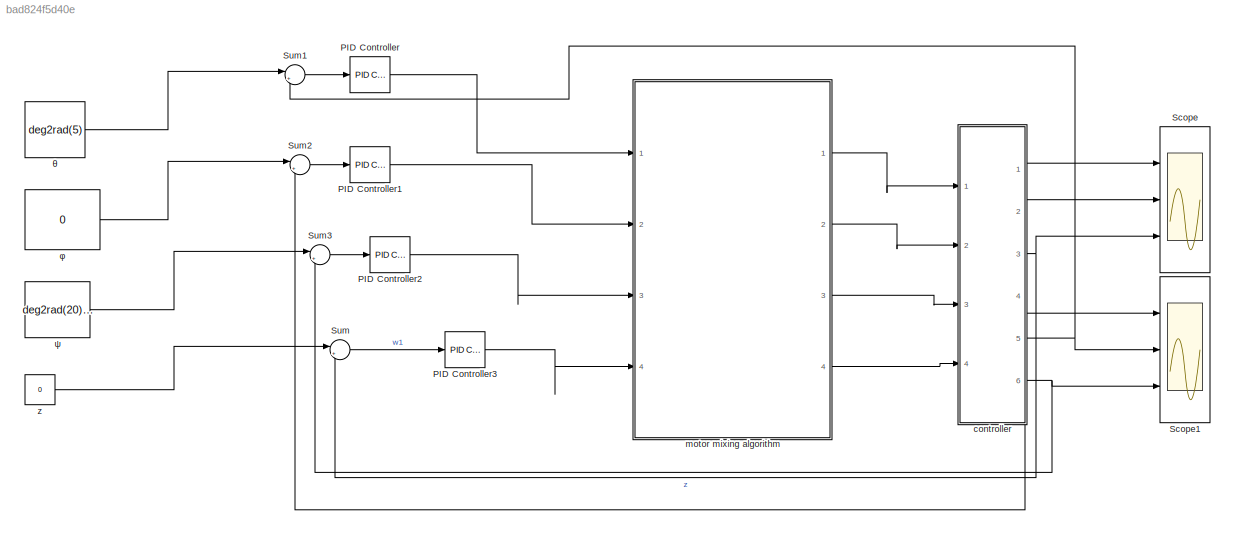
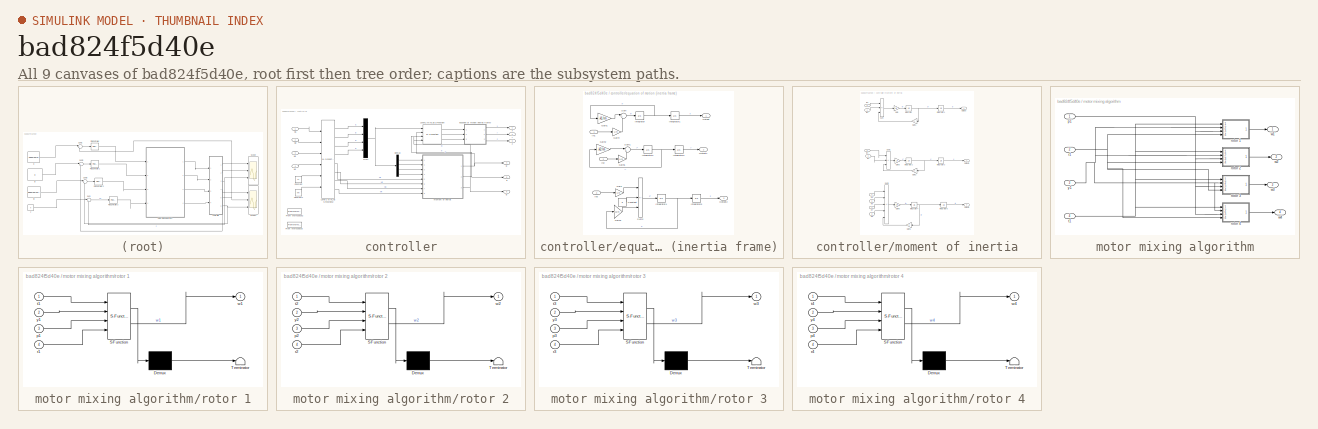
[diagram: thumbnail index - all 9 canvases of the model, root first then tree order]
MODEL slx_bad824f5d40e
KIND model
CONFIG AbsTol = auto
CONFIG EnableMultiTasking = off
CONFIG FixedStep = auto
CONFIG MaxStep = auto
CONFIG MinStep = auto
CONFIG RelTol = 1e-3
CONFIG SampleTimeConstraint = Unconstrained
CONFIG SolverName = VariableStepAuto
CONFIG StartTime = 0.0
CONFIG StopTime = 10.0
BLOCK [Reference] PID Controller  REF=pid_lib/PID Controller
  Ports = [1, 1]
  SourceBlock = pid_lib/PID Controller
  SourceProductBaseCode = SL
  SourceType = PID 1dof
BLOCK [Reference] PID Controller1  REF=pid_lib/PID Controller
  Ports = [1, 1]
  SourceBlock = pid_lib/PID Controller
  SourceProductBaseCode = SL
  SourceType = PID 1dof
BLOCK [Reference] PID Controller2  REF=pid_lib/PID Controller
  Ports = [1, 1]
  SourceBlock = pid_lib/PID Controller
  SourceProductBaseCode = SL
  SourceType = PID 1dof
BLOCK [Reference] PID Controller3  REF=pid_lib/PID Controller
  Ports = [1, 1]
  SourceBlock = pid_lib/PID Controller
  SourceProductBaseCode = SL
  SourceType = PID 1dof
BLOCK [Scope] Scope
  Floating = off
  NumInputPorts = 3
  Ports = [3]
  ScopeSpecificationString = Simulink.scopes.TimeScopeBlockCfg('CurrentConfiguration', extmgr.ConfigurationSet(extmgr.Configuration('Core','General UI',true),extmgr.Configuration('Core','Source UI',true),extmgr.Configuration('Sources','WiredSimulink',true),extmgr.Configuration('Visuals','Time Domain',true,'SerializedDisplays',{struct('MinYLimReal','-343685347486470193371764014186496.00000','MaxYLimReal','309316812737823210063...<+2947ch>
BLOCK [Scope] Scope1
  Floating = off
  NumInputPorts = 3
  Ports = [3]
  ScopeSpecificationString = Simulink.scopes.TimeScopeBlockCfg('CurrentConfiguration', extmgr.ConfigurationSet(extmgr.Configuration('Core','General UI',true),extmgr.Configuration('Core','Source UI',true),extmgr.Configuration('Sources','WiredSimulink',true,'DataLoggingVariableName','ScopeData1'),extmgr.Configuration('Visuals','Time Domain',true,'SerializedDisplays',{struct('MinYLimReal','-131968238339.18199','MaxYLimReal','118...<+3024ch>
BLOCK [Sum] Sum
  Inputs = |+-
  Ports = [2, 1]
BLOCK [Sum] Sum1
  Inputs = |+-
  Ports = [2, 1]
BLOCK [Sum] Sum2
  Inputs = |+-
  Ports = [2, 1]
BLOCK [Sum] Sum3
  Inputs = |+-
  Ports = [2, 1]
BLOCK [SubSystem] controller
  Ports = [4, 6]
  RequestExecContextInheritance = off
BLOCK [Constant] controller/Constant
  Value = kf
BLOCK [Constant] controller/Constant1
  Value = km
BLOCK [Demux] controller/Demux
  Ports = [1, 4]
BLOCK [FromWorkspace] controller/From Workspace2
  Commented = on
  VariableName = kf
BLOCK [FromWorkspace] controller/From Workspace3
  Commented = on
  VariableName = km
BLOCK [M-S-Function] controller/Level-2 MATLAB S-Function
  FunctionName = transformation
  Ports = [4, 3]
BLOCK [M-S-Function] controller/Level-2 MATLAB S-Function2
  FunctionName = w_to_f
  Ports = [6, 8]
BLOCK [Mux] controller/Mux1
  DisplayOption = bar
  Ports = [4, 1]
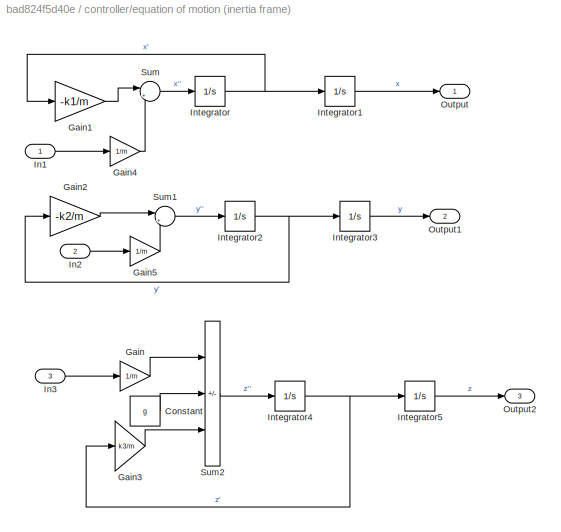
BLOCK [SubSystem] controller/equation of motion (inertia frame)
  Ports = [3, 3]
  RequestExecContextInheritance = off
BLOCK [Constant] controller/equation of motion (inertia frame)/Constant
  Value = g
BLOCK [Gain] controller/equation of motion (inertia frame)/Gain
  Gain = 1/m
BLOCK [Gain] controller/equation of motion (inertia frame)/Gain1
  Gain = -k1/m
BLOCK [Gain] controller/equation of motion (inertia frame)/Gain2
  Gain = -k2/m
BLOCK [Gain] controller/equation of motion (inertia frame)/Gain3
  Gain = k3/m
BLOCK [Gain] controller/equation of motion (inertia frame)/Gain4
  Gain = 1/m
BLOCK [Gain] controller/equation of motion (inertia frame)/Gain5
  Gain = 1/m
BLOCK [Inport] controller/equation of motion (inertia frame)/In1
BLOCK [Inport] controller/equation of motion (inertia frame)/In2
  Port = 2
BLOCK [Inport] controller/equation of motion (inertia frame)/In3
  Port = 3
BLOCK [Integrator] controller/equation of motion (inertia frame)/Integrator
  Ports = [1, 1]
BLOCK [Integrator] controller/equation of motion (inertia frame)/Integrator1
  Ports = [1, 1]
BLOCK [Integrator] controller/equation of motion (inertia frame)/Integrator2
  Ports = [1, 1]
BLOCK [Integrator] controller/equation of motion (inertia frame)/Integrator3
  Ports = [1, 1]
BLOCK [Integrator] controller/equation of motion (inertia frame)/Integrator4
  Ports = [1, 1]
BLOCK [Integrator] controller/equation of motion (inertia frame)/Integrator5
  Ports = [1, 1]
BLOCK [Outport] controller/equation of motion (inertia frame)/Output
BLOCK [Outport] controller/equation of motion (inertia frame)/Output1
  Port = 2
BLOCK [Outport] controller/equation of motion (inertia frame)/Output2
  Port = 3
BLOCK [Sum] controller/equation of motion (inertia frame)/Sum
  Inputs = |++
  Ports = [2, 1]
BLOCK [Sum] controller/equation of motion (inertia frame)/Sum1
  Inputs = |++
  Ports = [2, 1]
BLOCK [Sum] controller/equation of motion (inertia frame)/Sum2
  IconShape = rectangular
  Inputs = |+--
  Ports = [3, 1]
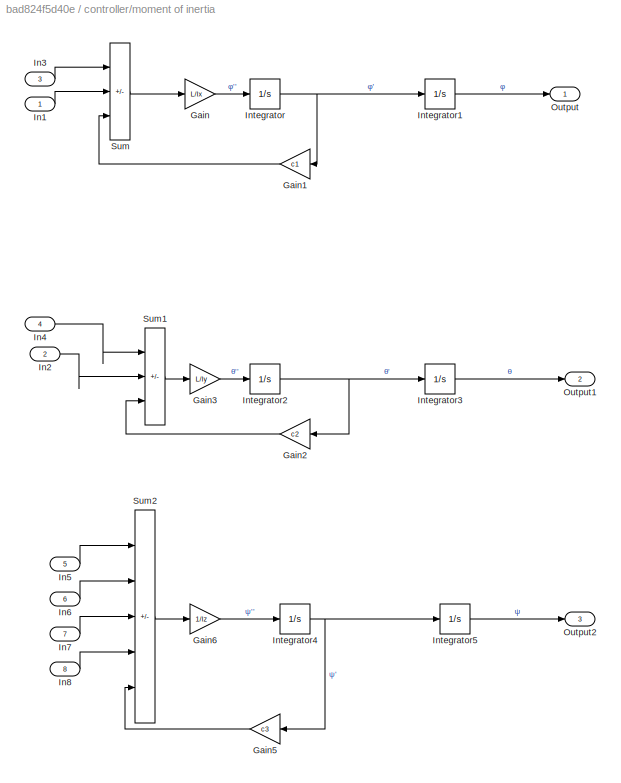
BLOCK [SubSystem] controller/moment of inertia
  Ports = [8, 3]
  RequestExecContextInheritance = off
BLOCK [Gain] controller/moment of inertia/Gain
  Gain = L/Ix
BLOCK [Gain] controller/moment of inertia/Gain1
  Gain = c1
  NameLocation = top
BLOCK [Gain] controller/moment of inertia/Gain2
  Gain = c2
  NameLocation = top
BLOCK [Gain] controller/moment of inertia/Gain3
  Gain = L/Iy
BLOCK [Gain] controller/moment of inertia/Gain5
  Gain = c3
  NameLocation = top
BLOCK [Gain] controller/moment of inertia/Gain6
  Gain = 1/Iz
BLOCK [Inport] controller/moment of inertia/In1
BLOCK [Inport] controller/moment of inertia/In2
  Port = 2
BLOCK [Inport] controller/moment of inertia/In3
  Port = 3
BLOCK [Inport] controller/moment of inertia/In4
  Port = 4
BLOCK [Inport] controller/moment of inertia/In5
  Port = 5
BLOCK [Inport] controller/moment of inertia/In6
  Port = 6
BLOCK [Inport] controller/moment of inertia/In7
  Port = 7
BLOCK [Inport] controller/moment of inertia/In8
  Port = 8
BLOCK [Integrator] controller/moment of inertia/Integrator
  Ports = [1, 1]
BLOCK [Integrator] controller/moment of inertia/Integrator1
  Ports = [1, 1]
BLOCK [Integrator] controller/moment of inertia/Integrator2
  Ports = [1, 1]
BLOCK [Integrator] controller/moment of inertia/Integrator3
  Ports = [1, 1]
BLOCK [Integrator] controller/moment of inertia/Integrator4
  Ports = [1, 1]
BLOCK [Integrator] controller/moment of inertia/Integrator5
  Ports = [1, 1]
BLOCK [Outport] controller/moment of inertia/Output
BLOCK [Outport] controller/moment of inertia/Output1
  Port = 2
BLOCK [Outport] controller/moment of inertia/Output2
  Port = 3
BLOCK [Sum] controller/moment of inertia/Sum
  IconShape = rectangular
  Inputs = |+--
  Ports = [3, 1]
BLOCK [Sum] controller/moment of inertia/Sum1
  IconShape = rectangular
  Inputs = |+--
  Ports = [3, 1]
BLOCK [Sum] controller/moment of inertia/Sum2
  IconShape = rectangular
  Inputs = |+-+--
  Ports = [5, 1]
BLOCK [Inport] controller/w1
BLOCK [Inport] controller/w2
  Port = 2
BLOCK [Inport] controller/w3
  Port = 3
BLOCK [Inport] controller/w4
  Port = 4
BLOCK [Outport] controller/x
BLOCK [Outport] controller/y
  Port = 2
BLOCK [Outport] controller/z
  Port = 3
BLOCK [Outport] controller/θ
  Port = 5
BLOCK [Outport] controller/φ
  Port = 4
BLOCK [Outport] controller/ψ
  Port = 6
BLOCK [SubSystem] motor mixing algorithm
  Ports = [4, 4]
  RequestExecContextInheritance = off
BLOCK [Inport] motor mixing algorithm/p1
BLOCK [Inport] motor mixing algorithm/r1
  Port = 2
BLOCK [SubSystem] motor mixing algorithm/rotor 1
  ErrorFcn = Stateflow.Translate.translate
  PermitHierarchicalResolution = ExplicitOnly
  Ports = [4, 1]
  RequestExecContextInheritance = off
  SFBlockType = MATLAB Function
  TreatAsAtomicUnit = on
BLOCK [Demux] motor mixing algorithm/rotor 1/ Demux 
  Outputs = 1
  Ports = [1, 1]
BLOCK [S-Function] motor mixing algorithm/rotor 1/ SFunction 
  EnableBusSupport = on
  FunctionName = sf_sfun
  PortCounts = [4 2]
  Ports = [4, 2]
  SFcnIsStateOwnerBlock = off
  SFunctionDeploymentMode = off
  Tag = Stateflow S-Function 1
BLOCK [Terminator] motor mixing algorithm/rotor 1/ Terminator 
BLOCK [Inport] motor mixing algorithm/rotor 1/p1
  Port = 3
BLOCK [Inport] motor mixing algorithm/rotor 1/r1
  Port = 4
BLOCK [Inport] motor mixing algorithm/rotor 1/t1
BLOCK [Outport] motor mixing algorithm/rotor 1/w1
BLOCK [Inport] motor mixing algorithm/rotor 1/y1
  Port = 2
BLOCK [SubSystem] motor mixing algorithm/rotor 2
  ErrorFcn = Stateflow.Translate.translate
  PermitHierarchicalResolution = ExplicitOnly
  Ports = [4, 1]
  RequestExecContextInheritance = off
  SFBlockType = MATLAB Function
  TreatAsAtomicUnit = on
BLOCK [Demux] motor mixing algorithm/rotor 2/ Demux 
  Outputs = 1
  Ports = [1, 1]
BLOCK [S-Function] motor mixing algorithm/rotor 2/ SFunction 
  EnableBusSupport = on
  FunctionName = sf_sfun
  PortCounts = [4 2]
  Ports = [4, 2]
  SFcnIsStateOwnerBlock = off
  SFunctionDeploymentMode = off
  Tag = Stateflow S-Function 3
BLOCK [Terminator] motor mixing algorithm/rotor 2/ Terminator 
BLOCK [Inport] motor mixing algorithm/rotor 2/p2
  Port = 3
BLOCK [Inport] motor mixing algorithm/rotor 2/r2
  Port = 4
BLOCK [Inport] motor mixing algorithm/rotor 2/t2
BLOCK [Outport] motor mixing algorithm/rotor 2/w2
BLOCK [Inport] motor mixing algorithm/rotor 2/y2
  Port = 2
BLOCK [SubSystem] motor mixing algorithm/rotor 3
  ErrorFcn = Stateflow.Translate.translate
  PermitHierarchicalResolution = ExplicitOnly
  Ports = [4, 1]
  RequestExecContextInheritance = off
  SFBlockType = MATLAB Function
  TreatAsAtomicUnit = on
BLOCK [Demux] motor mixing algorithm/rotor 3/ Demux 
  Outputs = 1
  Ports = [1, 1]
BLOCK [S-Function] motor mixing algorithm/rotor 3/ SFunction 
  EnableBusSupport = on
  FunctionName = sf_sfun
  PortCounts = [4 2]
  Ports = [4, 2]
  SFcnIsStateOwnerBlock = off
  SFunctionDeploymentMode = off
  Tag = Stateflow S-Function 4
BLOCK [Terminator] motor mixing algorithm/rotor 3/ Terminator 
BLOCK [Inport] motor mixing algorithm/rotor 3/p3
  Port = 3
BLOCK [Inport] motor mixing algorithm/rotor 3/r3
  Port = 4
BLOCK [Inport] motor mixing algorithm/rotor 3/t3
BLOCK [Outport] motor mixing algorithm/rotor 3/w3
BLOCK [Inport] motor mixing algorithm/rotor 3/y3
  Port = 2
BLOCK [SubSystem] motor mixing algorithm/rotor 4
  ErrorFcn = Stateflow.Translate.translate
  PermitHierarchicalResolution = ExplicitOnly
  Ports = [4, 1]
  RequestExecContextInheritance = off
  SFBlockType = MATLAB Function
  TreatAsAtomicUnit = on
BLOCK [Demux] motor mixing algorithm/rotor 4/ Demux 
  Outputs = 1
  Ports = [1, 1]
BLOCK [S-Function] motor mixing algorithm/rotor 4/ SFunction 
  EnableBusSupport = on
  FunctionName = sf_sfun
  PortCounts = [4 2]
  Ports = [4, 2]
  SFcnIsStateOwnerBlock = off
  SFunctionDeploymentMode = off
  Tag = Stateflow S-Function 5
BLOCK [Terminator] motor mixing algorithm/rotor 4/ Terminator 
BLOCK [Inport] motor mixing algorithm/rotor 4/p4
  Port = 3
BLOCK [Inport] motor mixing algorithm/rotor 4/r4
  Port = 4
BLOCK [Inport] motor mixing algorithm/rotor 4/t4
BLOCK [Outport] motor mixing algorithm/rotor 4/w4
BLOCK [Inport] motor mixing algorithm/rotor 4/y4
  Port = 2
BLOCK [Inport] motor mixing algorithm/t1
  Port = 4
BLOCK [Outport] motor mixing algorithm/w1
BLOCK [Outport] motor mixing algorithm/w2
  Port = 2
BLOCK [Outport] motor mixing algorithm/w3
  Port = 3
BLOCK [Outport] motor mixing algorithm/w4
  Port = 4
BLOCK [Inport] motor mixing algorithm/y1
  Port = 3
BLOCK [Constant] z
  Value = 0
BLOCK [Constant] θ
  Value = deg2rad(5)
BLOCK [Constant] φ
  Value = 0
BLOCK [Constant] ψ
  Value = deg2rad(20)*0
LINE PID Controller1:1 -> motor mixing algorithm:2
LINE PID Controller2:1 -> motor mixing algorithm:3
LINE PID Controller3:1 -> motor mixing algorithm:4
LINE PID Controller:1 -> motor mixing algorithm:1
LINE Sum1:1 -> PID Controller:1
LINE Sum2:1 -> PID Controller1:1
LINE Sum3:1 -> PID Controller2:1
LINE Sum:1 -> PID Controller3:1
LINE controller/Constant1:1 -> controller/Level-2 MATLAB S-Function2:6
LINE controller/Constant:1 -> controller/Level-2 MATLAB S-Function2:5
LINE controller/Demux:1 -> controller/moment of inertia:1
LINE controller/Demux:2 -> controller/moment of inertia:2
LINE controller/Demux:3 -> controller/moment of inertia:3
LINE controller/Demux:4 -> controller/moment of inertia:4
LINE controller/Level-2 MATLAB S-Function2:1 -> controller/Mux1:1
LINE controller/Level-2 MATLAB S-Function2:2 -> controller/Mux1:2
LINE controller/Level-2 MATLAB S-Function2:3 -> controller/Mux1:3
LINE controller/Level-2 MATLAB S-Function2:4 -> controller/Mux1:4
LINE controller/Level-2 MATLAB S-Function2:5 -> controller/moment of inertia:5
LINE controller/Level-2 MATLAB S-Function2:6 -> controller/moment of inertia:6
LINE controller/Level-2 MATLAB S-Function2:7 -> controller/moment of inertia:7
LINE controller/Level-2 MATLAB S-Function2:8 -> controller/moment of inertia:8
LINE controller/Level-2 MATLAB S-Function:1 -> controller/equation of motion (inertia frame):1
LINE controller/Level-2 MATLAB S-Function:2 -> controller/equation of motion (inertia frame):2
LINE controller/Level-2 MATLAB S-Function:3 -> controller/equation of motion (inertia frame):3
NET controller/Mux1:1 -> controller/Demux:1, controller/Level-2 MATLAB S-Function:1
LINE controller/equation of motion (inertia frame)/Constant:1 -> controller/equation of motion (inertia frame)/Sum2:2
LINE controller/equation of motion (inertia frame)/Gain1:1 -> controller/equation of motion (inertia frame)/Sum:1
LINE controller/equation of motion (inertia frame)/Gain2:1 -> controller/equation of motion (inertia frame)/Sum1:1
LINE controller/equation of motion (inertia frame)/Gain3:1 -> controller/equation of motion (inertia frame)/Sum2:3
LINE controller/equation of motion (inertia frame)/Gain4:1 -> controller/equation of motion (inertia frame)/Sum:2
LINE controller/equation of motion (inertia frame)/Gain5:1 -> controller/equation of motion (inertia frame)/Sum1:2
LINE controller/equation of motion (inertia frame)/Gain:1 -> controller/equation of motion (inertia frame)/Sum2:1
LINE controller/equation of motion (inertia frame)/In1:1 -> controller/equation of motion (inertia frame)/Gain4:1
LINE controller/equation of motion (inertia frame)/In2:1 -> controller/equation of motion (inertia frame)/Gain5:1
LINE controller/equation of motion (inertia frame)/In3:1 -> controller/equation of motion (inertia frame)/Gain:1
LINE controller/equation of motion (inertia frame)/Integrator1:1 -> controller/equation of motion (inertia frame)/Output:1
NET controller/equation of motion (inertia frame)/Integrator2:1 -> controller/equation of motion (inertia frame)/Gain2:1, controller/equation of motion (inertia frame)/Integrator3:1
LINE controller/equation of motion (inertia frame)/Integrator3:1 -> controller/equation of motion (inertia frame)/Output1:1
NET controller/equation of motion (inertia frame)/Integrator4:1 -> controller/equation of motion (inertia frame)/Gain3:1, controller/equation of motion (inertia frame)/Integrator5:1
LINE controller/equation of motion (inertia frame)/Integrator5:1 -> controller/equation of motion (inertia frame)/Output2:1
NET controller/equation of motion (inertia frame)/Integrator:1 -> controller/equation of motion (inertia frame)/Gain1:1, controller/equation of motion (inertia frame)/Integrator1:1
LINE controller/equation of motion (inertia frame)/Sum1:1 -> controller/equation of motion (inertia frame)/Integrator2:1
LINE controller/equation of motion (inertia frame)/Sum2:1 -> controller/equation of motion (inertia frame)/Integrator4:1
LINE controller/equation of motion (inertia frame)/Sum:1 -> controller/equation of motion (inertia frame)/Integrator:1
LINE controller/equation of motion (inertia frame):1 -> controller/x:1
LINE controller/equation of motion (inertia frame):2 -> controller/y:1
LINE controller/equation of motion (inertia frame):3 -> controller/z:1
LINE controller/moment of inertia/Gain1:1 -> controller/moment of inertia/Sum:3
LINE controller/moment of inertia/Gain2:1 -> controller/moment of inertia/Sum1:3
LINE controller/moment of inertia/Gain3:1 -> controller/moment of inertia/Integrator2:1
LINE controller/moment of inertia/Gain5:1 -> controller/moment of inertia/Sum2:5
LINE controller/moment of inertia/Gain6:1 -> controller/moment of inertia/Integrator4:1
LINE controller/moment of inertia/Gain:1 -> controller/moment of inertia/Integrator:1
LINE controller/moment of inertia/In1:1 -> controller/moment of inertia/Sum:2
LINE controller/moment of inertia/In2:1 -> controller/moment of inertia/Sum1:2
LINE controller/moment of inertia/In3:1 -> controller/moment of inertia/Sum:1
LINE controller/moment of inertia/In4:1 -> controller/moment of inertia/Sum1:1
LINE controller/moment of inertia/In5:1 -> controller/moment of inertia/Sum2:1
LINE controller/moment of inertia/In6:1 -> controller/moment of inertia/Sum2:2
LINE controller/moment of inertia/In7:1 -> controller/moment of inertia/Sum2:3
LINE controller/moment of inertia/In8:1 -> controller/moment of inertia/Sum2:4
LINE controller/moment of inertia/Integrator1:1 -> controller/moment of inertia/Output:1
NET controller/moment of inertia/Integrator2:1 -> controller/moment of inertia/Gain2:1, controller/moment of inertia/Integrator3:1
LINE controller/moment of inertia/Integrator3:1 -> controller/moment of inertia/Output1:1
NET controller/moment of inertia/Integrator4:1 -> controller/moment of inertia/Gain5:1, controller/moment of inertia/Integrator5:1
LINE controller/moment of inertia/Integrator5:1 -> controller/moment of inertia/Output2:1
NET controller/moment of inertia/Integrator:1 -> controller/moment of inertia/Gain1:1, controller/moment of inertia/Integrator1:1
LINE controller/moment of inertia/Sum1:1 -> controller/moment of inertia/Gain3:1
LINE controller/moment of inertia/Sum2:1 -> controller/moment of inertia/Gain6:1
LINE controller/moment of inertia/Sum:1 -> controller/moment of inertia/Gain:1
NET controller/moment of inertia:1 -> controller/Level-2 MATLAB S-Function:2, controller/φ:1
NET controller/moment of inertia:2 -> controller/Level-2 MATLAB S-Function:3, controller/θ:1
NET controller/moment of inertia:3 -> controller/Level-2 MATLAB S-Function:4, controller/ψ:1
LINE controller/w1:1 -> controller/Level-2 MATLAB S-Function2:1
LINE controller/w2:1 -> controller/Level-2 MATLAB S-Function2:2
LINE controller/w3:1 -> controller/Level-2 MATLAB S-Function2:3
LINE controller/w4:1 -> controller/Level-2 MATLAB S-Function2:4
LINE controller:1 -> Scope:1
LINE controller:2 -> Scope:2
NET controller:3 -> Scope:3, Sum:2
NET controller:4 -> Scope1:1, Sum2:2
NET controller:5 -> Scope1:2, Sum1:2
NET controller:6 -> Scope1:3, Sum3:2
NET motor mixing algorithm/p1:1 -> motor mixing algorithm/rotor 1:3, motor mixing algorithm/rotor 2:3, motor mixing algorithm/rotor 3:3, motor mixing algorithm/rotor 4:3
NET motor mixing algorithm/r1:1 -> motor mixing algorithm/rotor 1:4, motor mixing algorithm/rotor 2:4, motor mixing algorithm/rotor 3:4, motor mixing algorithm/rotor 4:4
LINE motor mixing algorithm/rotor 1:1 -> motor mixing algorithm/w1:1
LINE motor mixing algorithm/rotor 2:1 -> motor mixing algorithm/w2:1
LINE motor mixing algorithm/rotor 3:1 -> motor mixing algorithm/w3:1
LINE motor mixing algorithm/rotor 4:1 -> motor mixing algorithm/w4:1
NET motor mixing algorithm/t1:1 -> motor mixing algorithm/rotor 1:1, motor mixing algorithm/rotor 2:1, motor mixing algorithm/rotor 3:1, motor mixing algorithm/rotor 4:1
NET motor mixing algorithm/y1:1 -> motor mixing algorithm/rotor 1:2, motor mixing algorithm/rotor 2:2, motor mixing algorithm/rotor 3:2, motor mixing algorithm/rotor 4:2
LINE motor mixing algorithm:1 -> controller:1
LINE motor mixing algorithm:2 -> controller:2
LINE motor mixing algorithm:3 -> controller:3
LINE motor mixing algorithm:4 -> controller:4
LINE z:1 -> Sum:1
LINE θ:1 -> Sum1:1
LINE φ:1 -> Sum2:1
LINE ψ:1 -> Sum3:1
note: NET lines group one-source signal fan-out (src -> all destinations, sorted); 1:1 wires keep LINE
CHART motor mixing algorithm/rotor 1 states=1 transitions=1
  STATE_LABEL 'eML_blk_kernel()'
  STATE_LABEL 'SCRIPT:\nfunction w1 = fcn(t1,y1,p1,r1)\n\nw1 = t1-y1-p1+0;\n'
CHART motor mixing algorithm/rotor 2 states=1 transitions=1
  STATE_LABEL 'eML_blk_kernel()'
  STATE_LABEL 'SCRIPT:\nfunction w2 = fcn(t2,y2,p2,r2)\n\nw2 = t2+y2+0+r2;\n'
CHART motor mixing algorithm/rotor 3 states=1 transitions=1
  STATE_LABEL 'eML_blk_kernel()'
  STATE_LABEL 'SCRIPT:\nfunction w3 = fcn(t3,y3,p3,r3)\n\nw3 = t3-y3+p3+0;\n'
CHART motor mixing algorithm/rotor 4 states=1 transitions=1
  STATE_LABEL 'eML_blk_kernel()'
  STATE_LABEL 'SCRIPT:\nfunction w4 = fcn(t4,y4,p4,r4)\n\nw4 = t4+y4+0-r4;\n'
CHART  states=0 transitions=0
CHART  states=0 transitions=0
CHART  states=0 transitions=0
CHART  states=0 transitions=0
